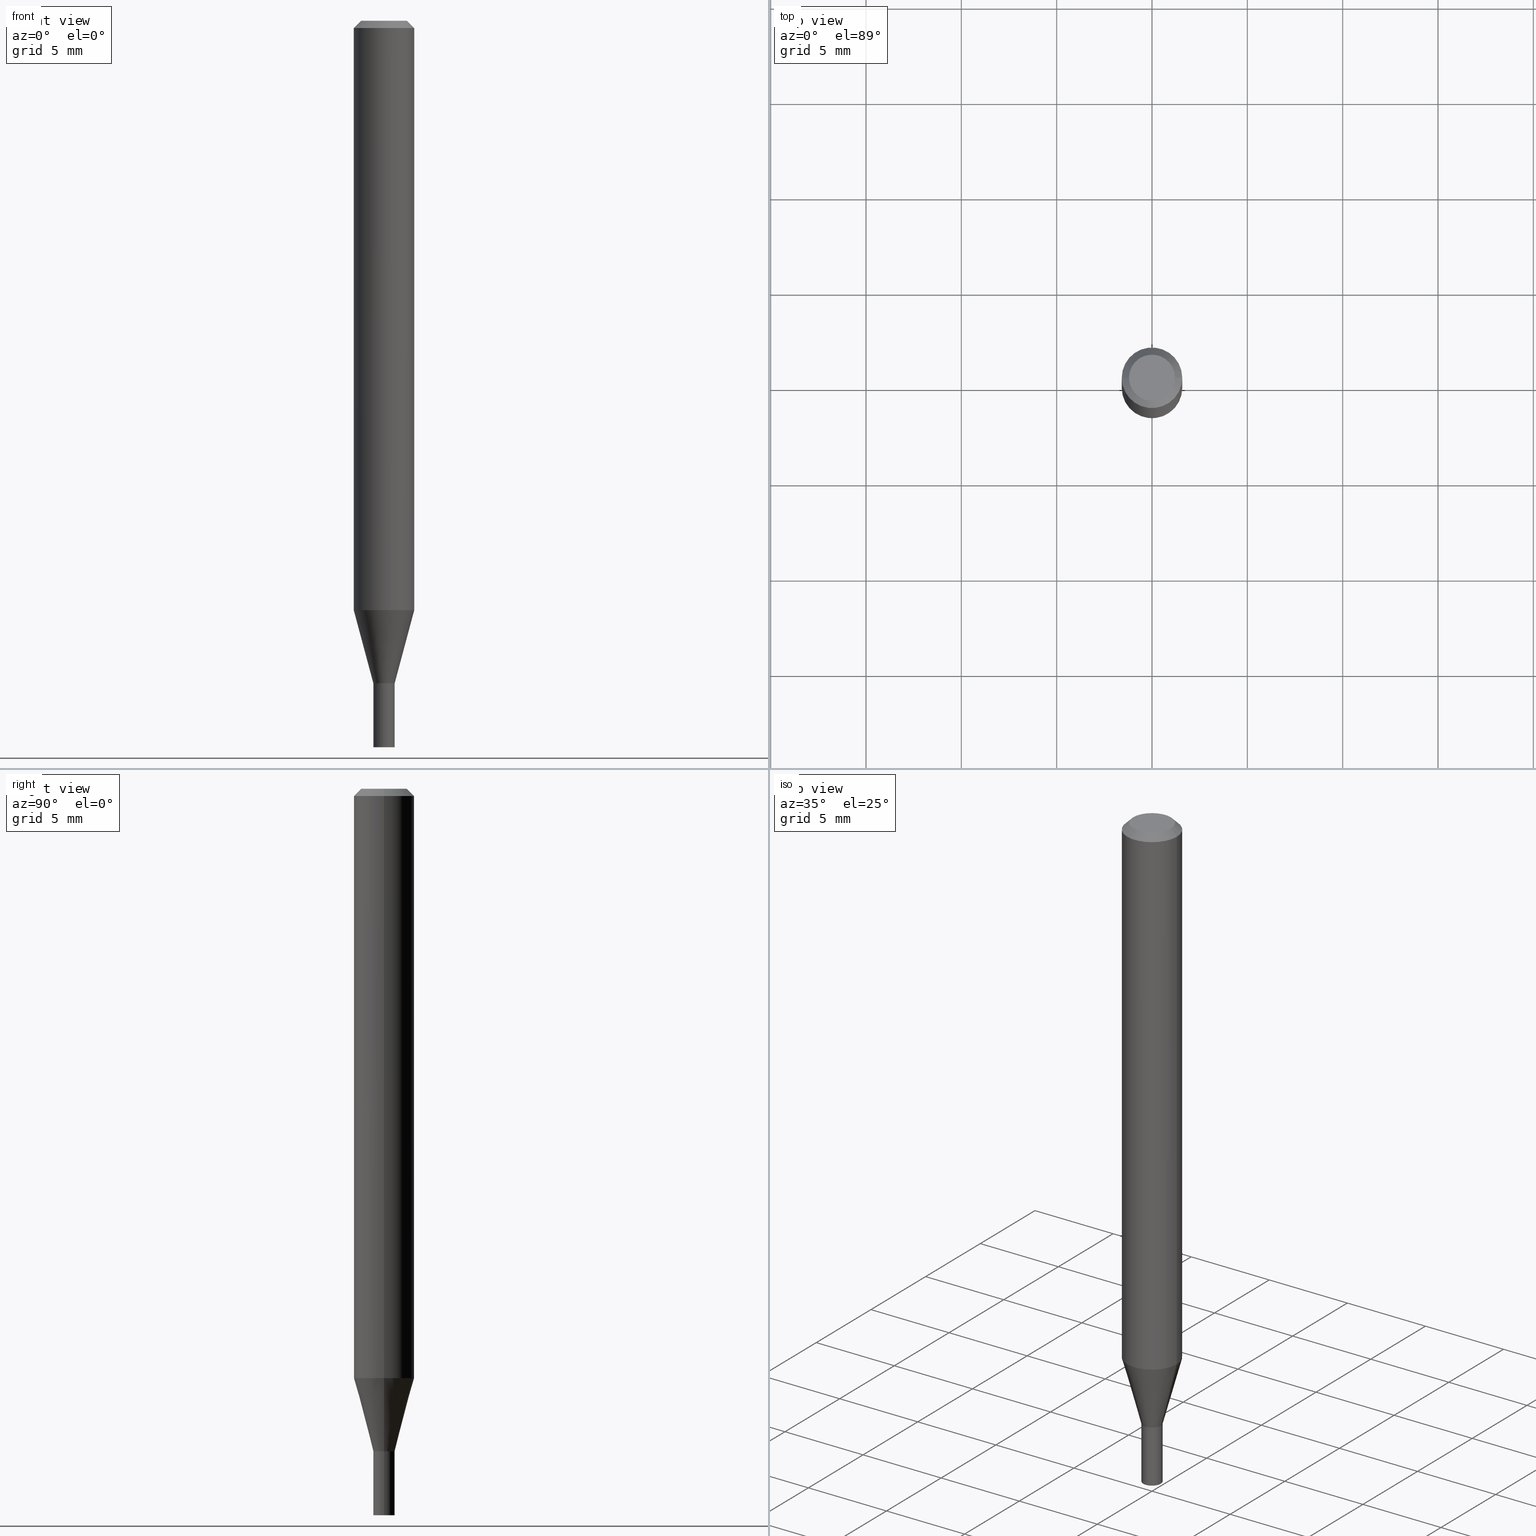
[diagram: canonical four-view strip — front | top / right | iso, engineering-drawing reading convention]
A machine part, canonical four-view strip (front | top / right | iso — engineering-drawing reading convention). The complete STEP part file that produces these views, byte-faithful:
ISO-10303-21;
HEADER;
FILE_DESCRIPTION (( 'STEP AP203' ),
    '1' );
FILE_NAME ('04150.STEP',
    '2024-03-14T17:07:02',
    ( '' ),
    ( '' ),
    'SwSTEP 2.0',
    'SolidWorks 2023',
    '' );
FILE_SCHEMA (( 'CONFIG_CONTROL_DESIGN' ));
ENDSEC;

DATA;
#1 = AXIS2_PLACEMENT_3D ( 'NONE', #406, #361, #160 ) ;
#2 = FACE_OUTER_BOUND ( 'NONE', #110, .T. ) ;
#3 = VERTEX_POINT ( 'NONE', #274 ) ;
#4 = CYLINDRICAL_SURFACE ( 'NONE', #107, 0.02199999999999964831 ) ;
#5 =( NAMED_UNIT ( * ) PLANE_ANGLE_UNIT ( ) SI_UNIT ( $, .RADIAN. ) );
#6 = ORIENTED_EDGE ( 'NONE', *, *, #466, .F. ) ;
#7 = DIRECTION ( 'NONE',  ( -2.445468806185136597E-29, 3.491481338843145583E-15, 1.000000000000000000 ) ) ;
#8 = DIRECTION ( 'NONE',  ( 0.7071067811865444641, -7.319954787623245001E-15, -0.7071067811865505703 ) ) ;
#9 = ORIENTED_EDGE ( 'NONE', *, *, #275, .T. ) ;
#10 = CARTESIAN_POINT ( 'NONE',  ( 3.345401326861266963E-29, -4.776346471537423880E-15, -1.368000000000000105 ) ) ;
#11 = AXIS2_PLACEMENT_3D ( 'NONE', #184, #113, #49 ) ;
#12 = ORIENTED_EDGE ( 'NONE', *, *, #130, .F. ) ;
#13 = CYLINDRICAL_SURFACE ( 'NONE', #280, 0.06250000000000000000 ) ;
#14 = VERTEX_POINT ( 'NONE', #279 ) ;
#15 = EDGE_CURVE ( 'NONE', #447, #14, #126, .T. ) ;
#16 = ORIENTED_EDGE ( 'NONE', *, *, #138, .F. ) ;
#17 = COORDINATED_UNIVERSAL_TIME_OFFSET ( 5, 0, .BEHIND. ) ;
#18 = DIRECTION ( 'NONE',  ( 1.000000000000000000, -6.982962677686245411E-15, 0.000000000000000000 ) ) ;
#19 = CIRCLE ( 'NONE', #379, 0.04749999999999999362 ) ;
#20 = CARTESIAN_POINT ( 'NONE',  ( -0.02199999999999999872, -4.850464838033848848E-15, -1.500000000000000222 ) ) ;
#21 =( GEOMETRIC_REPRESENTATION_CONTEXT ( 3 ) GLOBAL_UNCERTAINTY_ASSIGNED_CONTEXT ( ( #383 ) ) GLOBAL_UNIT_ASSIGNED_CONTEXT ( ( #94, #5, #394 ) ) REPRESENTATION_CONTEXT ( 'NONE', 'WORKASPACE' ) );
#22 = VECTOR ( 'NONE', #330, 39.37007874015748143 ) ;
#23 = ORIENTED_EDGE ( 'NONE', *, *, #387, .T. ) ;
#24 = SECURITY_CLASSIFICATION_LEVEL ( 'unclassified' ) ;
#25 = LINE ( 'NONE', #462, #100 ) ;
#26 = EDGE_CURVE ( 'NONE', #181, #407, #19, .T. ) ;
#27 = PLANE ( 'NONE',  #388 ) ;
#28 = CALENDAR_DATE ( 2024, 14, 3 ) ;
#29 = AXIS2_PLACEMENT_3D ( 'NONE', #172, #214, #454 ) ;
#30 = VECTOR ( 'NONE', #192, 39.37007874015748143 ) ;
#31 = PERSON_AND_ORGANIZATION_ROLE ( 'creator' ) ;
#32 = ORIENTED_EDGE ( 'NONE', *, *, #220, .T. ) ;
#33 = ADVANCED_FACE ( 'NONE', ( #393 ), #35, .T. ) ;
#34 = VERTEX_POINT ( 'NONE', #127 ) ;
#35 = CONICAL_SURFACE ( 'NONE', #137, 0.02149999999999999481, 0.7853981633974739252 ) ;
#36 = ORIENTED_EDGE ( 'NONE', *, *, #415, .T. ) ;
#37 = CARTESIAN_POINT ( 'NONE',  ( 0.000000000000000000, 0.000000000000000000, 0.000000000000000000 ) ) ;
#38 = ORIENTED_EDGE ( 'NONE', *, *, #72, .T. ) ;
#39 = DIRECTION ( 'NONE',  ( -2.445468806185136877E-29, 3.491481338843145188E-15, 1.000000000000000000 ) ) ;
#40 = CARTESIAN_POINT ( 'NONE',  ( -3.223020679335594837E-45, 4.601619341103081537E-31, 1.317956160873471783E-16 ) ) ;
#41 = AXIS2_PLACEMENT_3D ( 'NONE', #372, #47, #416 ) ;
#42 = ORIENTED_EDGE ( 'NONE', *, *, #404, .T. ) ;
#43 = CARTESIAN_POINT ( 'NONE',  ( 3.345401326861266963E-29, -4.776346471537423880E-15, -1.368000000000000105 ) ) ;
#44 = DIRECTION ( 'NONE',  ( 1.000000000000000000, -6.982962677686266711E-15, 0.000000000000000000 ) ) ;
#45 = LENGTH_MEASURE_WITH_UNIT ( LENGTH_MEASURE( 0.02539999999999999897 ), #57 );
#46 = ORIENTED_EDGE ( 'NONE', *, *, #365, .F. ) ;
#47 = DIRECTION ( 'NONE',  ( -2.445468806185136597E-29, 3.491481338843145583E-15, 1.000000000000000000 ) ) ;
#48 = EDGE_CURVE ( 'NONE', #3, #212, #277, .T. ) ;
#49 = DIRECTION ( 'NONE',  ( 1.000000000000000000, -6.982962677686266711E-15, 4.876176775795935232E-29 ) ) ;
#50 = ORIENTED_EDGE ( 'NONE', *, *, #415, .F. ) ;
#51 = MANIFOLD_SOLID_BREP ( 'Body-Move/Copy2[2]', #165 ) ;
#52 = DIRECTION ( 'NONE',  ( -2.445468806185136877E-29, 3.491481338843145188E-15, 1.000000000000000000 ) ) ;
#53 = CYLINDRICAL_SURFACE ( 'NONE', #216, 0.02199999999999999872 ) ;
#54 = SECURITY_CLASSIFICATION ( '', '', #24 ) ;
#55 = CARTESIAN_POINT ( 'NONE',  ( 0.02199999999999999872, -1.536251789090978361E-16, 1.072758890675105930E-30 ) ) ;
#56 = EDGE_CURVE ( 'NONE', #181, #224, #95, .T. ) ;
#57 =( LENGTH_UNIT ( ) NAMED_UNIT ( * ) SI_UNIT ( $, .METRE. ) );
#58 = APPLICATION_PROTOCOL_DEFINITION ( 'international standard', 'config_control_design', 1994, #349 ) ;
#59 = DIRECTION ( 'NONE',  ( 1.000000000000000000, -6.982962677686245411E-15, 0.000000000000000000 ) ) ;
#60 = CALENDAR_DATE ( 2024, 14, 3 ) ;
#61 = AXIS2_PLACEMENT_3D ( 'NONE', #300, #446, #117 ) ;
#62 = AXIS2_PLACEMENT_3D ( 'NONE', #157, #303, #226 ) ;
#63 = ADVANCED_FACE ( 'NONE', ( #384 ), #289, .T. ) ;
#64 = CARTESIAN_POINT ( 'NONE',  ( 3.345401326861266963E-29, -4.776346471537423880E-15, -1.368000000000000105 ) ) ;
#65 = CARTESIAN_POINT ( 'NONE',  ( 3.344178592458174722E-29, -4.774600730868002376E-15, -1.367500000000000160 ) ) ;
#66 = COORDINATED_UNIVERSAL_TIME_OFFSET ( 5, 0, .BEHIND. ) ;
#67 = DIRECTION ( 'NONE',  ( 1.000000000000000000, -6.982962677686268288E-15, 0.000000000000000000 ) ) ;
#68 = DIRECTION ( 'NONE',  ( -2.445468806185136877E-29, 3.491481338843145188E-15, 1.000000000000000000 ) ) ;
#69 = CARTESIAN_POINT ( 'NONE',  ( 0.000000000000000000, 0.000000000000000000, 0.000000000000000000 ) ) ;
#70 = ORIENTED_EDGE ( 'NONE', *, *, #457, .F. ) ;
#71 = CIRCLE ( 'NONE', #358, 0.02199999999999999872 ) ;
#72 = EDGE_CURVE ( 'NONE', #212, #3, #71, .T. ) ;
#73 = AXIS2_PLACEMENT_3D ( 'NONE', #40, #78, #299 ) ;
#74 = AXIS2_PLACEMENT_3D ( 'NONE', #364, #331, #390 ) ;
#75 = DIRECTION ( 'NONE',  ( -1.000000000000000000, 6.982962677686266711E-15, 0.000000000000000000 ) ) ;
#76 = ORIENTED_EDGE ( 'NONE', *, *, #365, .T. ) ;
#77 = CARTESIAN_POINT ( 'NONE',  ( -0.02199999999999964831, -4.212276854236394930E-15, -1.368000000000000105 ) ) ;
#78 = DIRECTION ( 'NONE',  ( -2.445468806185136597E-29, 3.491481338843145583E-15, 1.000000000000000000 ) ) ;
#79 = EDGE_LOOP ( 'NONE', ( #421, #108, #375, #205 ) ) ;
#80 = CC_DESIGN_SECURITY_CLASSIFICATION ( #54, ( #242 ) ) ;
#81 = CARTESIAN_POINT ( 'NONE',  ( 0.02199999999999964831, -1.536251789090954202E-16, 1.072758890675088589E-30 ) ) ;
#82 = PRODUCT_DEFINITION ( 'UNKNOWN', '', #242, #270 ) ;
#83 = CARTESIAN_POINT ( 'NONE',  ( -0.02199999999999964831, -4.620027069670204066E-15, -1.368000000000000105 ) ) ;
#84 = EDGE_LOOP ( 'NONE', ( #301, #265 ) ) ;
#85 = DIRECTION ( 'NONE',  ( -2.445468806185136597E-29, 3.491481338843145583E-15, 1.000000000000000000 ) ) ;
#86 = CARTESIAN_POINT ( 'NONE',  ( 3.345401326861266403E-29, -4.776346471537422302E-15, -1.367999999999999661 ) ) ;
#87 = DIRECTION ( 'NONE',  ( 0.2588190451025207395, 1.565188264969626109E-15, 0.9659258262890682012 ) ) ;
#88 = ORIENTED_EDGE ( 'NONE', *, *, #48, .F. ) ;
#89 = PLANE ( 'NONE',  #171 ) ;
#90 = CARTESIAN_POINT ( 'NONE',  ( -0.02149999999999999481, -4.623579783349001021E-15, -1.367999999999999661 ) ) ;
#91 = ADVANCED_FACE ( 'NONE', ( #399 ), #437, .F. ) ;
#92 = CIRCLE ( 'NONE', #142, 0.02199999999999964831 ) ;
#93 = LOCAL_TIME ( 13, 7, 2.000000000000000000, #385 ) ;
#94 =( CONVERSION_BASED_UNIT ( 'INCH', #45 ) LENGTH_UNIT ( ) NAMED_UNIT ( #191 ) );
#95 = LINE ( 'NONE', #102, #245 ) ;
#96 = PRODUCT_DEFINITION_SHAPE ( 'NONE', 'NONE',  #82 ) ;
#97 = PERSON_AND_ORGANIZATION_ROLE ( 'classification_officer' ) ;
#98 = CIRCLE ( 'NONE', #61, 0.02149999999999999481 ) ;
#99 = DIRECTION ( 'NONE',  ( -2.438088387897960049E-29, 3.491481338843145188E-15, 1.000000000000000000 ) ) ;
#100 = VECTOR ( 'NONE', #68, 39.37007874015748143 ) ;
#101 = APPROVAL_ROLE ( '' ) ;
#102 = CARTESIAN_POINT ( 'NONE',  ( -0.06250000000000000000, 3.840629472727444916E-16, -0.01499999999999999944 ) ) ;
#103 = PERSON_AND_ORGANIZATION ( #306, #427 ) ;
#104 = EDGE_CURVE ( 'NONE', #407, #183, #449, .T. ) ;
#105 = CC_DESIGN_APPROVAL ( #186, ( #82 ) ) ;
#106 = EDGE_LOOP ( 'NONE', ( #12, #238, #32, #395 ) ) ;
#107 = AXIS2_PLACEMENT_3D ( 'NONE', #37, #109, #222 ) ;
#108 = ORIENTED_EDGE ( 'NONE', *, *, #397, .T. ) ;
#109 = DIRECTION ( 'NONE',  ( -2.445468806185136597E-29, 3.491481338843145583E-15, 1.000000000000000000 ) ) ;
#110 = EDGE_LOOP ( 'NONE', ( #9, #202, #6, #350 ) ) ;
#111 = CYLINDRICAL_SURFACE ( 'NONE', #62, 0.02199999999999999872 ) ;
#112 = ADVANCED_FACE ( 'NONE', ( #267 ), #4, .F. ) ;
#113 = DIRECTION ( 'NONE',  ( -2.445468806185136597E-29, 3.491481338843145583E-15, 1.000000000000000000 ) ) ;
#114 = ORIENTED_EDGE ( 'NONE', *, *, #104, .F. ) ;
#115 = DIRECTION ( 'NONE',  ( -2.438088387897960049E-29, 3.491481338843145188E-15, 1.000000000000000000 ) ) ;
#116 = CONICAL_SURFACE ( 'NONE', #366, 0.02149999999999999481, 0.7853981633974739252 ) ;
#117 = DIRECTION ( 'NONE',  ( 1.000000000000000000, -6.982962677686266711E-15, 0.000000000000000000 ) ) ;
#118 = ORIENTED_EDGE ( 'NONE', *, *, #15, .F. ) ;
#119 = DIRECTION ( 'NONE',  ( 1.000000000000000000, -6.982962677686245411E-15, 0.000000000000000000 ) ) ;
#120 = LINE ( 'NONE', #81, #252 ) ;
#121 = CC_DESIGN_DATE_AND_TIME_ASSIGNMENT ( #351, #177, ( #82 ) ) ;
#122 = PLANE ( 'NONE',  #1 ) ;
#123 = VERTEX_POINT ( 'NONE', #140 ) ;
#124 = EDGE_CURVE ( 'NONE', #254, #337, #260, .T. ) ;
#125 = FACE_OUTER_BOUND ( 'NONE', #106, .T. ) ;
#126 = CIRCLE ( 'NONE', #285, 0.02199999999999964831 ) ;
#127 = CARTESIAN_POINT ( 'NONE',  ( -0.06249999999999999306, -3.804526638802586582E-15, -1.216851942293459166 ) ) ;
#128 = CC_DESIGN_DATE_AND_TIME_ASSIGNMENT ( #297, #376, ( #54 ) ) ;
#129 = CARTESIAN_POINT ( 'NONE',  ( 0.000000000000000000, 0.000000000000000000, 0.000000000000000000 ) ) ;
#130 = EDGE_CURVE ( 'NONE', #407, #181, #455, .T. ) ;
#131 = PERSON_AND_ORGANIZATION ( #306, #427 ) ;
#132 = DIRECTION ( 'NONE',  ( -2.445468806185136597E-29, 3.491481338843145583E-15, 1.000000000000000000 ) ) ;
#133 = CIRCLE ( 'NONE', #169, 0.02199999999999999872 ) ;
#134 = CIRCLE ( 'NONE', #286, 0.02199999999999964831 ) ;
#135 = APPROVAL_ROLE ( '' ) ;
#136 = APPLICATION_PROTOCOL_DEFINITION ( 'international standard', 'config_control_design', 1994, #435 ) ;
#137 = AXIS2_PLACEMENT_3D ( 'NONE', #307, #246, #314 ) ;
#138 = EDGE_CURVE ( 'NONE', #14, #337, #120, .T. ) ;
#139 = ORIENTED_EDGE ( 'NONE', *, *, #457, .T. ) ;
#140 = CARTESIAN_POINT ( 'NONE',  ( 0.02199999999999999872, -5.390847187173816013E-15, -1.500000000000000222 ) ) ;
#141 = DIRECTION ( 'NONE',  ( 1.000000000000000000, -6.982962677686262766E-15, 0.000000000000000000 ) ) ;
#142 = AXIS2_PLACEMENT_3D ( 'NONE', #65, #210, #247 ) ;
#143 = LOCAL_TIME ( 13, 7, 2.000000000000000000, #382 ) ;
#144 = CARTESIAN_POINT ( 'NONE',  ( 3.345401326861266403E-29, -4.776346471537422302E-15, -1.367999999999999661 ) ) ;
#145 = CARTESIAN_POINT ( 'NONE',  ( 0.02149999999999999481, -4.926480169107677131E-15, -1.367999999999999661 ) ) ;
#146 = ORIENTED_EDGE ( 'NONE', *, *, #196, .F. ) ;
#147 = FACE_OUTER_BOUND ( 'NONE', #233, .T. ) ;
#148 = EDGE_CURVE ( 'NONE', #34, #224, #189, .T. ) ;
#149 = ORIENTED_EDGE ( 'NONE', *, *, #357, .T. ) ;
#150 = ORIENTED_EDGE ( 'NONE', *, *, #211, .F. ) ;
#151 = DIRECTION ( 'NONE',  ( 0.7071067811865656694, -2.468850131082446387E-15, 0.7071067811865294761 ) ) ;
#152 = CARTESIAN_POINT ( 'NONE',  ( -0.02199999999999964831, -4.618281329000782563E-15, -1.367500000000000160 ) ) ;
#153 = ORIENTED_EDGE ( 'NONE', *, *, #220, .F. ) ;
#154 = CARTESIAN_POINT ( 'NONE',  ( -0.02199999999999999872, 1.563194018672220318E-16, -1.082165719856079240E-30 ) ) ;
#155 = AXIS2_PLACEMENT_3D ( 'NONE', #428, #308, #253 ) ;
#156 = APPROVAL ( #201, 'UNSPECIFIED' ) ;
#157 = CARTESIAN_POINT ( 'NONE',  ( 0.000000000000000000, 0.000000000000000000, 0.000000000000000000 ) ) ;
#158 = ADVANCED_FACE ( 'NONE', ( #271 ), #168, .T. ) ;
#159 = DIRECTION ( 'NONE',  ( -2.445468806185136597E-29, 3.491481338843145583E-15, 1.000000000000000000 ) ) ;
#160 = DIRECTION ( 'NONE',  ( -1.000000000000000000, 6.982962677686265922E-15, -4.876176775795935793E-29 ) ) ;
#161 = ORIENTED_EDGE ( 'NONE', *, *, #148, .T. ) ;
#162 = DIRECTION ( 'NONE',  ( 1.000000000000000000, -6.982962677686266711E-15, 4.876176775795935793E-29 ) ) ;
#163 = CALENDAR_DATE ( 2024, 14, 3 ) ;
#164 = ORIENTED_EDGE ( 'NONE', *, *, #387, .F. ) ;
#165 = CLOSED_SHELL ( 'NONE', ( #91, #176, #355, #439, #63, #204, #287, #158, #243, #298, #33, #112 ) ) ;
#166 = DIRECTION ( 'NONE',  ( 1.000000000000000000, -6.982962677686268288E-15, 0.000000000000000000 ) ) ;
#167 = CC_DESIGN_PERSON_AND_ORGANIZATION_ASSIGNMENT ( #464, #278, ( #242 ) ) ;
#168 = CONICAL_SURFACE ( 'NONE', #353, 0.06250000000000000000, 0.7853981633974439491 ) ;
#169 = AXIS2_PLACEMENT_3D ( 'NONE', #401, #327, #294 ) ;
#170 = MECHANICAL_CONTEXT ( 'NONE', #349, 'mechanical' ) ;
#171 = AXIS2_PLACEMENT_3D ( 'NONE', #444, #115, #263 ) ;
#172 = CARTESIAN_POINT ( 'NONE',  ( 3.668203209277705088E-31, -5.237222008264718399E-17, -0.01499999999999999944 ) ) ;
#173 = CC_DESIGN_PERSON_AND_ORGANIZATION_ASSIGNMENT ( #346, #31, ( #82 ) ) ;
#174 = EDGE_LOOP ( 'NONE', ( #149, #180, #50, #414 ) ) ;
#175 = PRODUCT_RELATED_PRODUCT_CATEGORY ( 'detail', '', ( #312 ) ) ;
#176 = ADVANCED_FACE ( 'NONE', ( #2 ), #116, .T. ) ;
#177 = DATE_TIME_ROLE ( 'creation_date' ) ;
#178 = LOCAL_TIME ( 13, 7, 2.000000000000000000, #66 ) ;
#179 = PERSON_AND_ORGANIZATION ( #306, #427 ) ;
#180 = ORIENTED_EDGE ( 'NONE', *, *, #259, .T. ) ;
#181 = VERTEX_POINT ( 'NONE', #338 ) ;
#182 = VERTEX_POINT ( 'NONE', #326 ) ;
#183 = VERTEX_POINT ( 'NONE', #185 ) ;
#184 = CARTESIAN_POINT ( 'NONE',  ( 0.000000000000000000, 0.000000000000000000, 0.000000000000000000 ) ) ;
#185 = CARTESIAN_POINT ( 'NONE',  ( 0.06250000000000000000, -4.888073874380388472E-16, -0.01499999999999999944 ) ) ;
#186 = APPROVAL ( #281, 'UNSPECIFIED' ) ;
#187 = ORIENTED_EDGE ( 'NONE', *, *, #466, .T. ) ;
#188 = VECTOR ( 'NONE', #8, 39.37007874015748143 ) ;
#189 = LINE ( 'NONE', #373, #419 ) ;
#190 = ORIENTED_EDGE ( 'NONE', *, *, #321, .F. ) ;
#191 = DIMENSIONAL_EXPONENTS ( 1.000000000000000000, 0.000000000000000000, 0.000000000000000000, 0.000000000000000000, 0.000000000000000000, 0.000000000000000000, 0.000000000000000000 ) ;
#192 = DIRECTION ( 'NONE',  ( -2.445468806185136877E-29, 3.491481338843145188E-15, 1.000000000000000000 ) ) ;
#193 = CARTESIAN_POINT ( 'NONE',  ( 0.02199999999999999872, -4.929971650446520927E-15, -1.368000000000000105 ) ) ;
#194 = EDGE_LOOP ( 'NONE', ( #118, #139, #396, #16 ) ) ;
#195 = CARTESIAN_POINT ( 'NONE',  ( 3.668203209277704895E-29, -5.237222008264718177E-15, -1.500000000000000222 ) ) ;
#196 = EDGE_CURVE ( 'NONE', #305, #123, #133, .T. ) ;
#197 = CARTESIAN_POINT ( 'NONE',  ( 0.02149999999999999481, -4.926480169107677131E-15, -1.367999999999999661 ) ) ;
#198 = ORIENTED_EDGE ( 'NONE', *, *, #26, .F. ) ;
#199 = CARTESIAN_POINT ( 'NONE',  ( 0.04749999999999999362, -4.035134999187576158E-16, 1.317956160873497667E-16 ) ) ;
#200 = CARTESIAN_POINT ( 'NONE',  ( 0.000000000000000000, 0.000000000000000000, 0.000000000000000000 ) ) ;
#201 = APPROVAL_STATUS ( 'not_yet_approved' ) ;
#202 = ORIENTED_EDGE ( 'NONE', *, *, #423, .T. ) ;
#203 = DIRECTION ( 'NONE',  ( 0.000000000000000000, 0.000000000000000000, 1.000000000000000000 ) ) ;
#204 = ADVANCED_FACE ( 'NONE', ( #291 ), #328, .T. ) ;
#205 = ORIENTED_EDGE ( 'NONE', *, *, #315, .F. ) ;
#206 = VECTOR ( 'NONE', #151, 39.37007874015748143 ) ;
#207 = VECTOR ( 'NONE', #39, 39.37007874015748143 ) ;
#208 = ADVANCED_BREP_SHAPE_REPRESENTATION ( '04150', ( #360, #51, #380 ), #21 ) ;
#209 = CARTESIAN_POINT ( 'NONE',  ( 3.345401326861266963E-29, -4.776346471537423880E-15, -1.368000000000000105 ) ) ;
#210 = DIRECTION ( 'NONE',  ( -2.445468806185136597E-29, 3.491481338843145583E-15, 1.000000000000000000 ) ) ;
#211 = EDGE_CURVE ( 'NONE', #182, #254, #436, .T. ) ;
#212 = VERTEX_POINT ( 'NONE', #193 ) ;
#213 = CALENDAR_DATE ( 2024, 14, 3 ) ;
#214 = DIRECTION ( 'NONE',  ( -2.445468806185136597E-29, 3.491481338843145583E-15, 1.000000000000000000 ) ) ;
#215 = DIRECTION ( 'NONE',  ( 1.000000000000000000, 0.000000000000000000, 0.000000000000000000 ) ) ;
#216 = AXIS2_PLACEMENT_3D ( 'NONE', #200, #264, #223 ) ;
#217 = CC_DESIGN_APPROVAL ( #156, ( #54 ) ) ;
#218 = ORIENTED_EDGE ( 'NONE', *, *, #404, .F. ) ;
#219 = ORIENTED_EDGE ( 'NONE', *, *, #423, .F. ) ;
#220 = EDGE_CURVE ( 'NONE', #183, #224, #432, .T. ) ;
#221 = CC_DESIGN_APPROVAL ( #325, ( #242 ) ) ;
#222 = DIRECTION ( 'NONE',  ( 1.000000000000000000, -6.982962677686266711E-15, 4.876176775795935232E-29 ) ) ;
#223 = DIRECTION ( 'NONE',  ( 1.000000000000000000, -6.982962677686265922E-15, 4.876176775795936353E-29 ) ) ;
#224 = VERTEX_POINT ( 'NONE', #304 ) ;
#225 = LINE ( 'NONE', #363, #207 ) ;
#226 = DIRECTION ( 'NONE',  ( 1.000000000000000000, -6.982962677686265922E-15, 4.876176775795936353E-29 ) ) ;
#227 = VERTEX_POINT ( 'NONE', #239 ) ;
#228 = DIRECTION ( 'NONE',  ( -1.000000000000000000, 6.982962677686266711E-15, 0.000000000000000000 ) ) ;
#229 = SHAPE_DEFINITION_REPRESENTATION ( #96, #208 ) ;
#230 = APPROVAL_PERSON_ORGANIZATION ( #131, #186, #101 ) ;
#231 = CARTESIAN_POINT ( 'NONE',  ( 3.668203209277705088E-31, -5.237222008264718399E-17, -0.01499999999999999944 ) ) ;
#232 = DIRECTION ( 'NONE',  ( -0.2588190451025207395, 5.211531920934546309E-15, 0.9659258262890682012 ) ) ;
#233 = EDGE_LOOP ( 'NONE', ( #218, #296, #23, #88 ) ) ;
#234 = ADVANCED_FACE ( 'NONE', ( #377 ), #53, .T. ) ;
#235 = LINE ( 'NONE', #154, #30 ) ;
#236 = CARTESIAN_POINT ( 'NONE',  ( 3.668203209277705088E-31, -5.237222008264718399E-17, -0.01499999999999999944 ) ) ;
#237 = FACE_OUTER_BOUND ( 'NONE', #459, .T. ) ;
#238 = ORIENTED_EDGE ( 'NONE', *, *, #104, .T. ) ;
#239 = CARTESIAN_POINT ( 'NONE',  ( 0.06249999999999999306, -4.685051016008040868E-15, -1.216851942293459166 ) ) ;
#240 = FACE_OUTER_BOUND ( 'NONE', #262, .T. ) ;
#241 = AXIS2_PLACEMENT_3D ( 'NONE', #129, #283, #348 ) ;
#242 = PRODUCT_DEFINITION_FORMATION_WITH_SPECIFIED_SOURCE ( 'ANY', '', #312, .NOT_KNOWN. ) ;
#243 = ADVANCED_FACE ( 'NONE', ( #295 ), #122, .F. ) ;
#244 = PERSON_AND_ORGANIZATION ( #306, #427 ) ;
#245 = VECTOR ( 'NONE', #391, 39.37007874015748143 ) ;
#246 = DIRECTION ( 'NONE',  ( -2.445468806185136597E-29, 3.491481338843145583E-15, 1.000000000000000000 ) ) ;
#247 = DIRECTION ( 'NONE',  ( 1.000000000000000000, -6.982962677686268288E-15, 0.000000000000000000 ) ) ;
#248 = EDGE_CURVE ( 'NONE', #14, #227, #410, .T. ) ;
#249 = COORDINATED_UNIVERSAL_TIME_OFFSET ( 5, 0, .BEHIND. ) ;
#250 = DIRECTION ( 'NONE',  ( -2.445468806185136597E-29, 3.491481338843145583E-15, 1.000000000000000000 ) ) ;
#251 = CC_DESIGN_PERSON_AND_ORGANIZATION_ASSIGNMENT ( #103, #458, ( #242 ) ) ;
#252 = VECTOR ( 'NONE', #445, 39.37007874015748143 ) ;
#253 = DIRECTION ( 'NONE',  ( -1.000000000000000000, 6.982962677686265922E-15, -4.876176775795935793E-29 ) ) ;
#254 = VERTEX_POINT ( 'NONE', #145 ) ;
#255 = CC_DESIGN_PERSON_AND_ORGANIZATION_ASSIGNMENT ( #244, #316, ( #312 ) ) ;
#256 = EDGE_LOOP ( 'NONE', ( #76, #42, #323, #164 ) ) ;
#257 = CIRCLE ( 'NONE', #29, 0.06250000000000000000 ) ;
#258 = LOCAL_TIME ( 13, 7, 2.000000000000000000, #17 ) ;
#259 = EDGE_CURVE ( 'NONE', #447, #34, #367, .T. ) ;
#260 = LINE ( 'NONE', #197, #206 ) ;
#261 = VERTEX_POINT ( 'NONE', #152 ) ;
#262 = EDGE_LOOP ( 'NONE', ( #36, #161, #153, #411 ) ) ;
#263 = DIRECTION ( 'NONE',  ( 1.000000000000000000, -6.982962677686265922E-15, 4.876176775795935793E-29 ) ) ;
#264 = DIRECTION ( 'NONE',  ( -2.445468806185136597E-29, 3.491481338843145583E-15, 1.000000000000000000 ) ) ;
#265 = ORIENTED_EDGE ( 'NONE', *, *, #130, .T. ) ;
#266 = DIRECTION ( 'NONE',  ( 1.000000000000000000, -6.982962677686268288E-15, 0.000000000000000000 ) ) ;
#267 = FACE_OUTER_BOUND ( 'NONE', #418, .T. ) ;
#268 = ORIENTED_EDGE ( 'NONE', *, *, #56, .T. ) ;
#269 = DIRECTION ( 'NONE',  ( 2.445468806185136597E-29, -3.491481338843145583E-15, -1.000000000000000000 ) ) ;
#270 = DESIGN_CONTEXT ( 'detailed design', #435, 'design' ) ;
#271 = FACE_OUTER_BOUND ( 'NONE', #292, .T. ) ;
#272 = ORIENTED_EDGE ( 'NONE', *, *, #259, .F. ) ;
#273 = CARTESIAN_POINT ( 'NONE',  ( 3.668203209277705088E-31, -5.237222008264718399E-17, -0.01499999999999999944 ) ) ;
#274 = CARTESIAN_POINT ( 'NONE',  ( -0.02199999999999999872, -4.850464838033848848E-15, -1.368000000000000105 ) ) ;
#275 = EDGE_CURVE ( 'NONE', #254, #182, #98, .T. ) ;
#276 = DATE_AND_TIME ( #163, #143 ) ;
#277 = CIRCLE ( 'NONE', #317, 0.02199999999999999872 ) ;
#278 = PERSON_AND_ORGANIZATION_ROLE ( 'design_supplier' ) ;
#279 = CARTESIAN_POINT ( 'NONE',  ( 0.02199999999999964831, -4.929971650446518560E-15, -1.368000000000000105 ) ) ;
#280 = AXIS2_PLACEMENT_3D ( 'NONE', #334, #403, #162 ) ;
#281 = APPROVAL_STATUS ( 'not_yet_approved' ) ;
#282 = DATE_AND_TIME ( #313, #258 ) ;
#283 = DIRECTION ( 'NONE',  ( -2.445468806185136597E-29, 3.491481338843145583E-15, 1.000000000000000000 ) ) ;
#284 = ADVANCED_FACE ( 'NONE', ( #237 ), #374, .F. ) ;
#285 = AXIS2_PLACEMENT_3D ( 'NONE', #381, #309, #166 ) ;
#286 = AXIS2_PLACEMENT_3D ( 'NONE', #43, #7, #266 ) ;
#287 = ADVANCED_FACE ( 'NONE', ( #463 ), #460, .T. ) ;
#288 = DIRECTION ( 'NONE',  ( 2.445468806185136597E-29, -3.491481338843145583E-15, -1.000000000000000000 ) ) ;
#289 = CONICAL_SURFACE ( 'NONE', #409, 0.02199999999999964831, 0.2617993877991494633 ) ;
#290 = CIRCLE ( 'NONE', #74, 0.02199999999999964831 ) ;
#291 = FACE_OUTER_BOUND ( 'NONE', #339, .T. ) ;
#292 = EDGE_LOOP ( 'NONE', ( #114, #198, #268, #443 ) ) ;
#293 = CC_DESIGN_PERSON_AND_ORGANIZATION_ASSIGNMENT ( #424, #97, ( #54 ) ) ;
#294 = DIRECTION ( 'NONE',  ( 1.000000000000000000, -6.982962677686245411E-15, 0.000000000000000000 ) ) ;
#295 = FACE_OUTER_BOUND ( 'NONE', #84, .T. ) ;
#296 = ORIENTED_EDGE ( 'NONE', *, *, #196, .T. ) ;
#297 = DATE_AND_TIME ( #60, #93 ) ;
#298 = ADVANCED_FACE ( 'NONE', ( #345 ), #27, .F. ) ;
#299 = DIRECTION ( 'NONE',  ( 1.000000000000000000, -6.982962677686267499E-15, 4.884662768193073002E-29 ) ) ;
#300 = CARTESIAN_POINT ( 'NONE',  ( 3.345401326861266403E-29, -4.776346471537422302E-15, -1.367999999999999661 ) ) ;
#301 = ORIENTED_EDGE ( 'NONE', *, *, #26, .T. ) ;
#302 = AXIS2_PLACEMENT_3D ( 'NONE', #236, #159, #417 ) ;
#303 = DIRECTION ( 'NONE',  ( -2.445468806185136597E-29, 3.491481338843145583E-15, 1.000000000000000000 ) ) ;
#304 = CARTESIAN_POINT ( 'NONE',  ( -0.06250000000000000000, -1.706404824517585325E-15, -0.01499999999999999944 ) ) ;
#305 = VERTEX_POINT ( 'NONE', #20 ) ;
#306 = PERSON ( 'UNSPECIFIED', 'UNSPECIFIED', 'UNSPECIFIED', ('UNSPECIFIED'), ('UNSPECIFIED'), ('UNSPECIFIED') ) ;
#307 = CARTESIAN_POINT ( 'NONE',  ( 3.345401326861266403E-29, -4.776346471537422302E-15, -1.367999999999999661 ) ) ;
#308 = DIRECTION ( 'NONE',  ( 2.438088387897960049E-29, -3.491481338843145188E-15, -1.000000000000000000 ) ) ;
#309 = DIRECTION ( 'NONE',  ( -2.445468806185136597E-29, 3.491481338843145583E-15, 1.000000000000000000 ) ) ;
#310 = CARTESIAN_POINT ( 'NONE',  ( 3.345401326861266403E-29, -4.776346471537422302E-15, -1.367999999999999661 ) ) ;
#311 = APPROVAL_DATE_TIME ( #276, #156 ) ;
#312 = PRODUCT ( '04150', '04150', '', ( #170 ) ) ;
#313 = CALENDAR_DATE ( 2024, 14, 3 ) ;
#314 = DIRECTION ( 'NONE',  ( 1.000000000000000000, -6.982962677686266711E-15, 0.000000000000000000 ) ) ;
#315 = EDGE_CURVE ( 'NONE', #224, #183, #257, .T. ) ;
#316 = PERSON_AND_ORGANIZATION_ROLE ( 'design_owner' ) ;
#317 = AXIS2_PLACEMENT_3D ( 'NONE', #425, #422, #18 ) ;
#318 = AXIS2_PLACEMENT_3D ( 'NONE', #273, #269, #228 ) ;
#319 = APPROVAL_STATUS ( 'not_yet_approved' ) ;
#320 = EDGE_LOOP ( 'NONE', ( #46, #146 ) ) ;
#321 = EDGE_CURVE ( 'NONE', #261, #337, #92, .T. ) ;
#322 = CARTESIAN_POINT ( 'NONE',  ( 0.02199999999999964831, -4.928225909777097846E-15, -1.367500000000000160 ) ) ;
#323 = ORIENTED_EDGE ( 'NONE', *, *, #72, .F. ) ;
#324 = VECTOR ( 'NONE', #87, 39.37007874015748854 ) ;
#325 = APPROVAL ( #319, 'UNSPECIFIED' ) ;
#326 = CARTESIAN_POINT ( 'NONE',  ( -0.02149999999999999481, -4.620930556174891397E-15, -1.367999999999999661 ) ) ;
#327 = DIRECTION ( 'NONE',  ( -2.445468806185136597E-29, 3.491481338843145583E-15, 1.000000000000000000 ) ) ;
#328 = CONICAL_SURFACE ( 'NONE', #465, 0.02199999999999964831, 0.2617993877991494633 ) ;
#329 = ORIENTED_EDGE ( 'NONE', *, *, #124, .T. ) ;
#330 = DIRECTION ( 'NONE',  ( -0.7071067811865656694, 7.493145998870420424E-15, 0.7071067811865294761 ) ) ;
#331 = DIRECTION ( 'NONE',  ( -2.445468806185136597E-29, 3.491481338843145583E-15, 1.000000000000000000 ) ) ;
#332 = DIRECTION ( 'NONE',  ( -2.445468806185136877E-29, 3.491481338843145188E-15, 1.000000000000000000 ) ) ;
#333 = ORIENTED_EDGE ( 'NONE', *, *, #48, .T. ) ;
#334 = CARTESIAN_POINT ( 'NONE',  ( 0.000000000000000000, 0.000000000000000000, 0.000000000000000000 ) ) ;
#335 = EDGE_CURVE ( 'NONE', #227, #183, #25, .T. ) ;
#336 = DIRECTION ( 'NONE',  ( 1.000000000000000000, -6.982962677686266711E-15, 0.000000000000000000 ) ) ;
#337 = VERTEX_POINT ( 'NONE', #322 ) ;
#338 = CARTESIAN_POINT ( 'NONE',  ( -0.04749999999999999362, 3.578768372314212971E-16, 1.317956160873447624E-16 ) ) ;
#339 = EDGE_LOOP ( 'NONE', ( #272, #453, #362, #398 ) ) ;
#340 = LINE ( 'NONE', #90, #22 ) ;
#341 = APPROVAL_PERSON_ORGANIZATION ( #179, #325, #135 ) ;
#342 = APPROVAL_ROLE ( '' ) ;
#343 = ADVANCED_FACE ( 'NONE', ( #451 ), #89, .F. ) ;
#344 = PERSON_AND_ORGANIZATION ( #306, #427 ) ;
#345 = FACE_OUTER_BOUND ( 'NONE', #402, .T. ) ;
#346 = PERSON_AND_ORGANIZATION ( #306, #427 ) ;
#347 = VECTOR ( 'NONE', #52, 39.37007874015748143 ) ;
#348 = DIRECTION ( 'NONE',  ( 1.000000000000000000, -6.982962677686266711E-15, 4.876176775795935793E-29 ) ) ;
#349 = APPLICATION_CONTEXT ( 'configuration controlled 3d designs of mechanical parts and assemblies' ) ;
#350 = ORIENTED_EDGE ( 'NONE', *, *, #124, .F. ) ;
#351 = DATE_AND_TIME ( #213, #178 ) ;
#352 = DIRECTION ( 'NONE',  ( 1.000000000000000000, -6.982962677686267499E-15, 4.884662768193073002E-29 ) ) ;
#353 = AXIS2_PLACEMENT_3D ( 'NONE', #231, #288, #75 ) ;
#354 = APPROVAL_PERSON_ORGANIZATION ( #344, #156, #342 ) ;
#355 = ADVANCED_FACE ( 'NONE', ( #125 ), #369, .T. ) ;
#356 = DATE_AND_TIME ( #28, #389 ) ;
#357 = EDGE_CURVE ( 'NONE', #14, #447, #134, .T. ) ;
#358 = AXIS2_PLACEMENT_3D ( 'NONE', #209, #452, #59 ) ;
#359 = CIRCLE ( 'NONE', #438, 0.02199999999999999872 ) ;
#360 = MANIFOLD_SOLID_BREP ( 'Body-Move/Copy2[1]', #426 ) ;
#361 = DIRECTION ( 'NONE',  ( 2.438088387897960049E-29, -3.491481338843145188E-15, -1.000000000000000000 ) ) ;
#362 = ORIENTED_EDGE ( 'NONE', *, *, #248, .T. ) ;
#363 = CARTESIAN_POINT ( 'NONE',  ( -0.02199999999999964831, 1.563194018672195420E-16, -1.082165719856062074E-30 ) ) ;
#364 = CARTESIAN_POINT ( 'NONE',  ( 3.344178592458174722E-29, -4.774600730868002376E-15, -1.367500000000000160 ) ) ;
#365 = EDGE_CURVE ( 'NONE', #123, #305, #359, .T. ) ;
#366 = AXIS2_PLACEMENT_3D ( 'NONE', #144, #413, #336 ) ;
#367 = LINE ( 'NONE', #83, #431 ) ;
#368 = ORIENTED_EDGE ( 'NONE', *, *, #357, .F. ) ;
#369 = CONICAL_SURFACE ( 'NONE', #318, 0.06250000000000000000, 0.7853981633974439491 ) ;
#370 = DIRECTION ( 'NONE',  ( -2.445468806185136597E-29, 3.491481338843145583E-15, 1.000000000000000000 ) ) ;
#371 = ORIENTED_EDGE ( 'NONE', *, *, #138, .T. ) ;
#372 = CARTESIAN_POINT ( 'NONE',  ( 2.975773466624450297E-29, -4.248615848652648409E-15, -1.216851942293459166 ) ) ;
#373 = CARTESIAN_POINT ( 'NONE',  ( -0.06250000000000000000, 4.440892098500626162E-16, -3.074334431409316114E-30 ) ) ;
#374 = PLANE ( 'NONE',  #155 ) ;
#375 = ORIENTED_EDGE ( 'NONE', *, *, #335, .T. ) ;
#376 = DATE_TIME_ROLE ( 'classification_date' ) ;
#377 = FACE_OUTER_BOUND ( 'NONE', #256, .T. ) ;
#378 = CARTESIAN_POINT ( 'NONE',  ( 0.02199999999999964831, -4.929971650446518560E-15, -1.368000000000000105 ) ) ;
#379 = AXIS2_PLACEMENT_3D ( 'NONE', #386, #132, #352 ) ;
#380 = AXIS2_PLACEMENT_3D ( 'NONE', #69, #203, #215 ) ;
#381 = CARTESIAN_POINT ( 'NONE',  ( 3.345401326861266963E-29, -4.776346471537423880E-15, -1.368000000000000105 ) ) ;
#382 = COORDINATED_UNIVERSAL_TIME_OFFSET ( 5, 0, .BEHIND. ) ;
#383 = UNCERTAINTY_MEASURE_WITH_UNIT (LENGTH_MEASURE( 1.000000000000000082E-05 ), #94, 'distance_accuracy_value', 'NONE');
#384 = FACE_OUTER_BOUND ( 'NONE', #174, .T. ) ;
#385 = COORDINATED_UNIVERSAL_TIME_OFFSET ( 5, 0, .BEHIND. ) ;
#386 = CARTESIAN_POINT ( 'NONE',  ( -3.223020679335594837E-45, 4.601619341103081537E-31, 1.317956160873471783E-16 ) ) ;
#387 = EDGE_CURVE ( 'NONE', #123, #212, #441, .T. ) ;
#388 = AXIS2_PLACEMENT_3D ( 'NONE', #310, #99, #392 ) ;
#389 = LOCAL_TIME ( 13, 7, 2.000000000000000000, #249 ) ;
#390 = DIRECTION ( 'NONE',  ( 1.000000000000000000, -6.982962677686268288E-15, 0.000000000000000000 ) ) ;
#391 = DIRECTION ( 'NONE',  ( -0.7071067811865444641, 2.468850131082224717E-15, -0.7071067811865505703 ) ) ;
#392 = DIRECTION ( 'NONE',  ( 1.000000000000000000, -6.982962677686265922E-15, 4.876176775795935793E-29 ) ) ;
#393 = FACE_OUTER_BOUND ( 'NONE', #450, .T. ) ;
#394 =( NAMED_UNIT ( * ) SI_UNIT ( $, .STERADIAN. ) SOLID_ANGLE_UNIT ( ) );
#395 = ORIENTED_EDGE ( 'NONE', *, *, #56, .F. ) ;
#396 = ORIENTED_EDGE ( 'NONE', *, *, #321, .T. ) ;
#397 = EDGE_CURVE ( 'NONE', #34, #227, #420, .T. ) ;
#398 = ORIENTED_EDGE ( 'NONE', *, *, #397, .F. ) ;
#399 = FACE_OUTER_BOUND ( 'NONE', #194, .T. ) ;
#400 = AXIS2_PLACEMENT_3D ( 'NONE', #86, #370, #44 ) ;
#401 = CARTESIAN_POINT ( 'NONE',  ( 3.668203209277704895E-29, -5.237222008264718177E-15, -1.500000000000000222 ) ) ;
#402 = EDGE_LOOP ( 'NONE', ( #434, #150 ) ) ;
#403 = DIRECTION ( 'NONE',  ( -2.445468806185136597E-29, 3.491481338843145583E-15, 1.000000000000000000 ) ) ;
#404 = EDGE_CURVE ( 'NONE', #305, #3, #235, .T. ) ;
#405 = DIRECTION ( 'NONE',  ( -2.445468806185136597E-29, 3.491481338843145583E-15, 1.000000000000000000 ) ) ;
#406 = CARTESIAN_POINT ( 'NONE',  ( 3.316907271900976096E-16, 0.04749999999999999362, -9.994755555137580731E-17 ) ) ;
#407 = VERTEX_POINT ( 'NONE', #199 ) ;
#408 = CARTESIAN_POINT ( 'NONE',  ( 0.06250000000000000000, -4.811533449433679005E-16, -0.01499999999999999944 ) ) ;
#409 = AXIS2_PLACEMENT_3D ( 'NONE', #64, #250, #67 ) ;
#410 = LINE ( 'NONE', #378, #324 ) ;
#411 = ORIENTED_EDGE ( 'NONE', *, *, #335, .F. ) ;
#412 = CARTESIAN_POINT ( 'NONE',  ( 2.975773466624450297E-29, -4.248615848652648409E-15, -1.216851942293459166 ) ) ;
#413 = DIRECTION ( 'NONE',  ( -2.445468806185136597E-29, 3.491481338843145583E-15, 1.000000000000000000 ) ) ;
#414 = ORIENTED_EDGE ( 'NONE', *, *, #248, .F. ) ;
#415 = EDGE_CURVE ( 'NONE', #227, #34, #456, .T. ) ;
#416 = DIRECTION ( 'NONE',  ( 1.000000000000000000, -6.982962677686262766E-15, 0.000000000000000000 ) ) ;
#417 = DIRECTION ( 'NONE',  ( 1.000000000000000000, -6.982962677686266711E-15, 0.000000000000000000 ) ) ;
#418 = EDGE_LOOP ( 'NONE', ( #70, #368, #371, #187 ) ) ;
#419 = VECTOR ( 'NONE', #332, 39.37007874015748143 ) ;
#420 = CIRCLE ( 'NONE', #433, 0.06250000000000000000 ) ;
#421 = ORIENTED_EDGE ( 'NONE', *, *, #148, .F. ) ;
#422 = DIRECTION ( 'NONE',  ( -2.445468806185136597E-29, 3.491481338843145583E-15, 1.000000000000000000 ) ) ;
#423 = EDGE_CURVE ( 'NONE', #182, #261, #340, .T. ) ;
#424 = PERSON_AND_ORGANIZATION ( #306, #427 ) ;
#425 = CARTESIAN_POINT ( 'NONE',  ( 3.345401326861266963E-29, -4.776346471537423880E-15, -1.368000000000000105 ) ) ;
#426 = CLOSED_SHELL ( 'NONE', ( #234, #343, #461, #284 ) ) ;
#427 = ORGANIZATION ( 'UNSPECIFIED', 'UNSPECIFIED', '' ) ;
#428 = CARTESIAN_POINT ( 'NONE',  ( 1.536251789091312887E-16, 0.02199999999999522129, -1.368000000000000105 ) ) ;
#429 = APPROVAL_DATE_TIME ( #282, #325 ) ;
#430 = APPROVAL_DATE_TIME ( #356, #186 ) ;
#431 = VECTOR ( 'NONE', #232, 39.37007874015748854 ) ;
#432 = CIRCLE ( 'NONE', #302, 0.06250000000000000000 ) ;
#433 = AXIS2_PLACEMENT_3D ( 'NONE', #412, #85, #141 ) ;
#434 = ORIENTED_EDGE ( 'NONE', *, *, #275, .F. ) ;
#435 = APPLICATION_CONTEXT ( 'configuration controlled 3d designs of mechanical parts and assemblies' ) ;
#436 = CIRCLE ( 'NONE', #400, 0.02149999999999999481 ) ;
#437 = CYLINDRICAL_SURFACE ( 'NONE', #11, 0.02199999999999964831 ) ;
#438 = AXIS2_PLACEMENT_3D ( 'NONE', #195, #448, #119 ) ;
#439 = ADVANCED_FACE ( 'NONE', ( #240 ), #13, .T. ) ;
#440 = ORIENTED_EDGE ( 'NONE', *, *, #211, .T. ) ;
#441 = LINE ( 'NONE', #55, #347 ) ;
#442 = DIRECTION ( 'NONE',  ( 1.000000000000000000, -6.982962677686268288E-15, 0.000000000000000000 ) ) ;
#443 = ORIENTED_EDGE ( 'NONE', *, *, #315, .T. ) ;
#444 = CARTESIAN_POINT ( 'NONE',  ( 3.576687321579069994E-29, -5.368277968210015545E-15, -1.500000000000000222 ) ) ;
#445 = DIRECTION ( 'NONE',  ( -2.445468806185136877E-29, 3.491481338843145188E-15, 1.000000000000000000 ) ) ;
#446 = DIRECTION ( 'NONE',  ( -2.445468806185136597E-29, 3.491481338843145583E-15, 1.000000000000000000 ) ) ;
#447 = VERTEX_POINT ( 'NONE', #77 ) ;
#448 = DIRECTION ( 'NONE',  ( -2.445468806185136597E-29, 3.491481338843145583E-15, 1.000000000000000000 ) ) ;
#449 = LINE ( 'NONE', #408, #188 ) ;
#450 = EDGE_LOOP ( 'NONE', ( #219, #440, #329, #190 ) ) ;
#451 = FACE_OUTER_BOUND ( 'NONE', #320, .T. ) ;
#452 = DIRECTION ( 'NONE',  ( -2.445468806185136597E-29, 3.491481338843145583E-15, 1.000000000000000000 ) ) ;
#453 = ORIENTED_EDGE ( 'NONE', *, *, #15, .T. ) ;
#454 = DIRECTION ( 'NONE',  ( 1.000000000000000000, -6.982962677686266711E-15, 0.000000000000000000 ) ) ;
#455 = CIRCLE ( 'NONE', #73, 0.04749999999999999362 ) ;
#456 = CIRCLE ( 'NONE', #41, 0.06250000000000000000 ) ;
#457 = EDGE_CURVE ( 'NONE', #447, #261, #225, .T. ) ;
#458 = PERSON_AND_ORGANIZATION_ROLE ( 'creator' ) ;
#459 = EDGE_LOOP ( 'NONE', ( #38, #333 ) ) ;
#460 = CYLINDRICAL_SURFACE ( 'NONE', #241, 0.06250000000000000000 ) ;
#461 = ADVANCED_FACE ( 'NONE', ( #147 ), #111, .T. ) ;
#462 = CARTESIAN_POINT ( 'NONE',  ( 0.06250000000000000000, -4.364351673553916694E-16, 3.047610484872459871E-30 ) ) ;
#463 = FACE_OUTER_BOUND ( 'NONE', #79, .T. ) ;
#464 = PERSON_AND_ORGANIZATION ( #306, #427 ) ;
#465 = AXIS2_PLACEMENT_3D ( 'NONE', #10, #405, #442 ) ;
#466 = EDGE_CURVE ( 'NONE', #337, #261, #290, .T. ) ;
ENDSEC;
END-ISO-10303-21;
